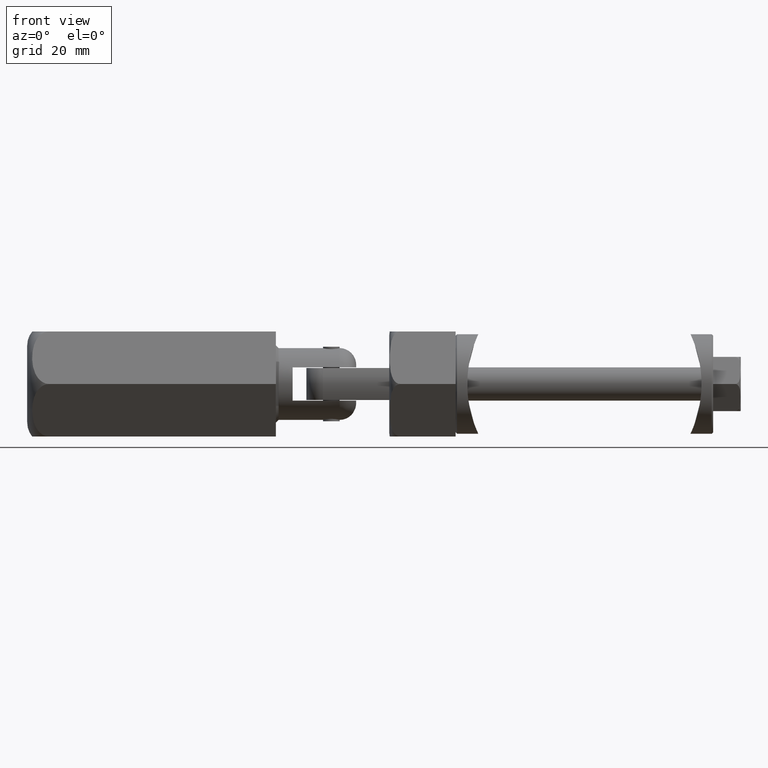
[diagram: clean part render]
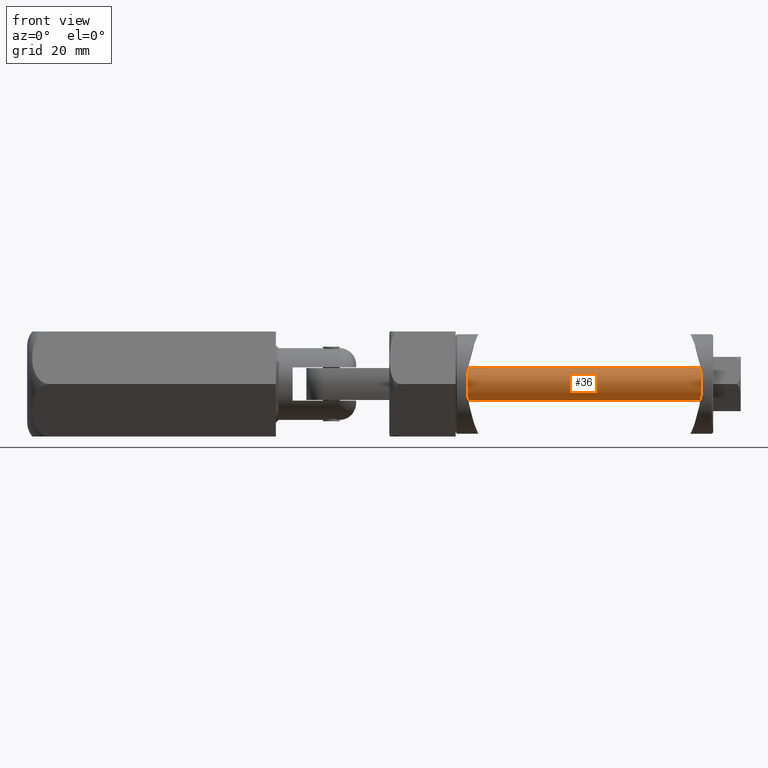
[diagram: same view with one face highlighted and labeled with its STEP entity id]
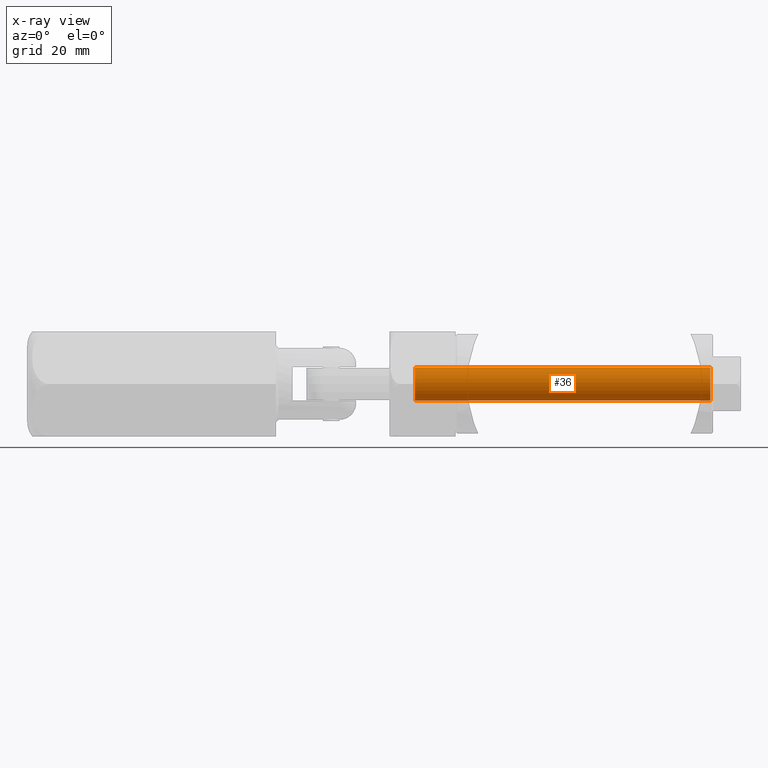
[diagram: x-ray of the same camera — body ghosted, the highlighted face saturated]
A machine part, front view. The second image highlights one B-rep face of the part: STEP entity #36.
The next image is the same camera in x-ray: the body ghosted, the highlighted face saturated — about 0% of this face is hidden behind the body in this view.
In plain terms, the highlighted cylindrical surface (bore or boss wall) has radius 3 mm, axis along (1, -0, 0).
Its self-contained STEP definition (entity closure, byte-faithful):
#36 = ADVANCED_FACE ( 'NONE', ( #1284, #12136 ), #13926, .T. ) ;
#38 = DIRECTION ( 'NONE',  ( 0.000000000000000000, 0.000000000000000000, 1.000000000000000000 ) ) ;
#1284 = FACE_OUTER_BOUND ( 'NONE', #13336, .T. ) ;
#3182 = DIRECTION ( 'NONE',  ( -0.000000000000000000, -1.000000000000000000, -0.000000000000000000 ) ) ;
#5055 = DIRECTION ( 'NONE',  ( 0.000000000000000000, 1.000000000000000000, 0.000000000000000000 ) ) ;
#5904 = DIRECTION ( 'NONE',  ( 0.000000000000000000, 0.000000000000000000, 1.000000000000000000 ) ) ;
#6934 = CIRCLE ( 'NONE', #10239, 3.000000000000000444 ) ;
#7956 = DIRECTION ( 'NONE',  ( 0.000000000000000000, 0.000000000000000000, -1.000000000000000000 ) ) ;
#10239 = AXIS2_PLACEMENT_3D ( 'NONE', #16450, #5055, #7956 ) ;
#10679 = ORIENTED_EDGE ( 'NONE', *, *, #13596, .T. ) ;
#10802 = EDGE_CURVE ( 'NONE', #18508, #18508, #6934, .T. ) ;
#11336 = AXIS2_PLACEMENT_3D ( 'NONE', #14482, #3182, #38 ) ;
#11508 = AXIS2_PLACEMENT_3D ( 'NONE', #11688, #13074, #5904 ) ;
#11688 = CARTESIAN_POINT ( 'NONE',  ( 0.000000000000000000, -55.00000000000000000, 0.000000000000000000 ) ) ;
#12136 = FACE_OUTER_BOUND ( 'NONE', #13027, .T. ) ;
#13027 = EDGE_LOOP ( 'NONE', ( #10679 ) ) ;
#13074 = DIRECTION ( 'NONE',  ( -0.000000000000000000, 1.000000000000000000, -0.000000000000000000 ) ) ;
#13336 = EDGE_LOOP ( 'NONE', ( #16980 ) ) ;
#13596 = EDGE_CURVE ( 'NONE', #14217, #14217, #17225, .T. ) ;
#13926 = CYLINDRICAL_SURFACE ( 'NONE', #11508, 3.000000000000000444 ) ;
#14217 = VERTEX_POINT ( 'NONE', #17269 ) ;
#14482 = CARTESIAN_POINT ( 'NONE',  ( 0.000000000000000000, -0.5000000000000004441, 0.000000000000000000 ) ) ;
#15709 = CARTESIAN_POINT ( 'NONE',  ( 0.000000000000000000, -53.99999999999997868, -3.000000000000000444 ) ) ;
#16450 = CARTESIAN_POINT ( 'NONE',  ( 0.000000000000000000, -53.99999999999997868, 0.000000000000000000 ) ) ;
#16980 = ORIENTED_EDGE ( 'NONE', *, *, #10802, .T. ) ;
#17225 = CIRCLE ( 'NONE', #11336, 3.000000000000000444 ) ;
#17269 = CARTESIAN_POINT ( 'NONE',  ( 0.000000000000000000, -0.5000000000000004441, 3.000000000000000444 ) ) ;
#18508 = VERTEX_POINT ( 'NONE', #15709 ) ;